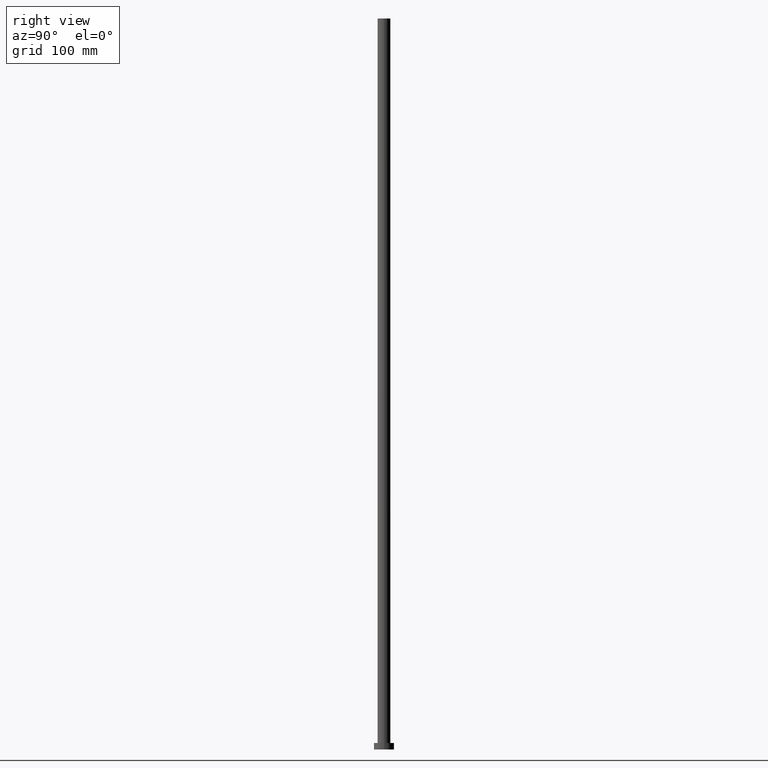
[diagram: clean part render]
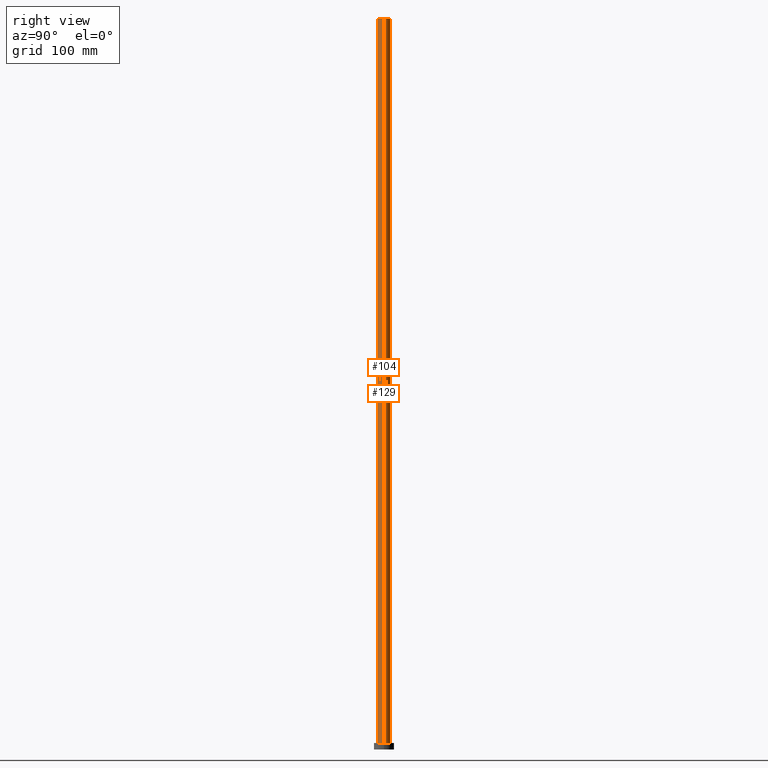
[diagram: same view with one multi-face feature highlighted, each face labeled with its STEP entity id]
A machine part, right view. The highlighted faces form ONE feature: a constant-radius fillet chain: 2 tangent blend faces with common blend radius 7 mm. The faces share edges in the B-rep.
Their STEP definitions:
[1] entity #129 (Cylinder):
#7 = DIRECTION ( 'NONE',  ( -1.000000000000000000, 0.000000000000000000, 0.000000000000000000 ) ) ;
#20 = CARTESIAN_POINT ( 'NONE',  ( 0.000000000000000000, 0.000000000000000000, 7.000000000000000000 ) ) ;
#24 = FACE_OUTER_BOUND ( 'NONE', #65, .T. ) ;
#26 = DIRECTION ( 'NONE',  ( 1.000000000000000000, 0.000000000000000000, 0.000000000000000000 ) ) ;
#39 = VECTOR ( 'NONE', #119, 1000.000000000000000 ) ;
#49 = CIRCLE ( 'NONE', #105, 7.000000000000000888 ) ;
#65 = EDGE_LOOP ( 'NONE', ( #182, #232, #204, #149 ) ) ;
#69 = CARTESIAN_POINT ( 'NONE',  ( -7.000000000000000888, 0.000000000000000000, 800.0000000000000000 ) ) ;
#77 = CARTESIAN_POINT ( 'NONE',  ( 0.000000000000000000, 0.000000000000000000, 800.0000000000000000 ) ) ;
#80 = LINE ( 'NONE', #226, #39 ) ;
#96 = CYLINDRICAL_SURFACE ( 'NONE', #191, 7.000000000000000888 ) ;
#98 = CARTESIAN_POINT ( 'NONE',  ( 7.000000000000000888, 8.572527594031474176E-16, 7.000000000000000000 ) ) ;
#105 = AXIS2_PLACEMENT_3D ( 'NONE', #173, #221, #196 ) ;
#108 = EDGE_CURVE ( 'NONE', #198, #118, #49, .T. ) ;
#117 = EDGE_CURVE ( 'NONE', #140, #150, #236, .T. ) ;
#118 = VERTEX_POINT ( 'NONE', #199 ) ;
#119 = DIRECTION ( 'NONE',  ( -0.000000000000000000, -0.000000000000000000, -1.000000000000000000 ) ) ;
#120 = EDGE_CURVE ( 'NONE', #198, #140, #80, .T. ) ;
#129 = ADVANCED_FACE ( 'NONE', ( #24 ), #96, .T. ) ;
#140 = VERTEX_POINT ( 'NONE', #98 ) ;
#143 = LINE ( 'NONE', #69, #193 ) ;
#149 = ORIENTED_EDGE ( 'NONE', *, *, #152, .F. ) ;
#150 = VERTEX_POINT ( 'NONE', #210 ) ;
#152 = EDGE_CURVE ( 'NONE', #118, #150, #143, .T. ) ;
#167 = CARTESIAN_POINT ( 'NONE',  ( 7.000000000000000888, 8.572527594031474176E-16, 800.0000000000000000 ) ) ;
#173 = CARTESIAN_POINT ( 'NONE',  ( 0.000000000000000000, 0.000000000000000000, 800.0000000000000000 ) ) ;
#176 = DIRECTION ( 'NONE',  ( -0.000000000000000000, -0.000000000000000000, -1.000000000000000000 ) ) ;
#182 = ORIENTED_EDGE ( 'NONE', *, *, #108, .F. ) ;
#191 = AXIS2_PLACEMENT_3D ( 'NONE', #77, #176, #7 ) ;
#193 = VECTOR ( 'NONE', #233, 1000.000000000000000 ) ;
#196 = DIRECTION ( 'NONE',  ( 1.000000000000000000, 0.000000000000000000, 0.000000000000000000 ) ) ;
#197 = AXIS2_PLACEMENT_3D ( 'NONE', #20, #203, #26 ) ;
#198 = VERTEX_POINT ( 'NONE', #167 ) ;
#199 = CARTESIAN_POINT ( 'NONE',  ( -7.000000000000000888, 0.000000000000000000, 800.0000000000000000 ) ) ;
#203 = DIRECTION ( 'NONE',  ( 0.000000000000000000, 0.000000000000000000, 1.000000000000000000 ) ) ;
#204 = ORIENTED_EDGE ( 'NONE', *, *, #117, .T. ) ;
#210 = CARTESIAN_POINT ( 'NONE',  ( -7.000000000000000888, 0.000000000000000000, 7.000000000000000000 ) ) ;
#221 = DIRECTION ( 'NONE',  ( 0.000000000000000000, 0.000000000000000000, 1.000000000000000000 ) ) ;
#226 = CARTESIAN_POINT ( 'NONE',  ( 7.000000000000000888, 8.572527594031474176E-16, 800.0000000000000000 ) ) ;
#232 = ORIENTED_EDGE ( 'NONE', *, *, #120, .T. ) ;
#233 = DIRECTION ( 'NONE',  ( -0.000000000000000000, -0.000000000000000000, -1.000000000000000000 ) ) ;
#236 = CIRCLE ( 'NONE', #197, 7.000000000000000888 ) ;
[2] entity #104 (Cylinder):
#1 = ORIENTED_EDGE ( 'NONE', *, *, #146, .T. ) ;
#21 = FACE_OUTER_BOUND ( 'NONE', #37, .T. ) ;
#23 = ORIENTED_EDGE ( 'NONE', *, *, #152, .T. ) ;
#37 = EDGE_LOOP ( 'NONE', ( #207, #164, #23, #1 ) ) ;
#39 = VECTOR ( 'NONE', #119, 1000.000000000000000 ) ;
#43 = AXIS2_PLACEMENT_3D ( 'NONE', #188, #82, #84 ) ;
#63 = DIRECTION ( 'NONE',  ( 1.000000000000000000, 0.000000000000000000, 0.000000000000000000 ) ) ;
#69 = CARTESIAN_POINT ( 'NONE',  ( -7.000000000000000888, 0.000000000000000000, 800.0000000000000000 ) ) ;
#80 = LINE ( 'NONE', #226, #39 ) ;
#82 = DIRECTION ( 'NONE',  ( 0.000000000000000000, 0.000000000000000000, 1.000000000000000000 ) ) ;
#84 = DIRECTION ( 'NONE',  ( 1.000000000000000000, 0.000000000000000000, 0.000000000000000000 ) ) ;
#91 = DIRECTION ( 'NONE',  ( -1.000000000000000000, 0.000000000000000000, 0.000000000000000000 ) ) ;
#94 = CYLINDRICAL_SURFACE ( 'NONE', #227, 7.000000000000000888 ) ;
#98 = CARTESIAN_POINT ( 'NONE',  ( 7.000000000000000888, 8.572527594031474176E-16, 7.000000000000000000 ) ) ;
#104 = ADVANCED_FACE ( 'NONE', ( #21 ), #94, .T. ) ;
#106 = CIRCLE ( 'NONE', #43, 7.000000000000000888 ) ;
#110 = AXIS2_PLACEMENT_3D ( 'NONE', #246, #229, #63 ) ;
#118 = VERTEX_POINT ( 'NONE', #199 ) ;
#119 = DIRECTION ( 'NONE',  ( -0.000000000000000000, -0.000000000000000000, -1.000000000000000000 ) ) ;
#120 = EDGE_CURVE ( 'NONE', #198, #140, #80, .T. ) ;
#140 = VERTEX_POINT ( 'NONE', #98 ) ;
#143 = LINE ( 'NONE', #69, #193 ) ;
#146 = EDGE_CURVE ( 'NONE', #150, #140, #255, .T. ) ;
#150 = VERTEX_POINT ( 'NONE', #210 ) ;
#152 = EDGE_CURVE ( 'NONE', #118, #150, #143, .T. ) ;
#164 = ORIENTED_EDGE ( 'NONE', *, *, #251, .F. ) ;
#167 = CARTESIAN_POINT ( 'NONE',  ( 7.000000000000000888, 8.572527594031474176E-16, 800.0000000000000000 ) ) ;
#188 = CARTESIAN_POINT ( 'NONE',  ( 0.000000000000000000, 0.000000000000000000, 800.0000000000000000 ) ) ;
#193 = VECTOR ( 'NONE', #233, 1000.000000000000000 ) ;
#194 = CARTESIAN_POINT ( 'NONE',  ( 0.000000000000000000, 0.000000000000000000, 800.0000000000000000 ) ) ;
#198 = VERTEX_POINT ( 'NONE', #167 ) ;
#199 = CARTESIAN_POINT ( 'NONE',  ( -7.000000000000000888, 0.000000000000000000, 800.0000000000000000 ) ) ;
#207 = ORIENTED_EDGE ( 'NONE', *, *, #120, .F. ) ;
#210 = CARTESIAN_POINT ( 'NONE',  ( -7.000000000000000888, 0.000000000000000000, 7.000000000000000000 ) ) ;
#218 = DIRECTION ( 'NONE',  ( -0.000000000000000000, -0.000000000000000000, -1.000000000000000000 ) ) ;
#226 = CARTESIAN_POINT ( 'NONE',  ( 7.000000000000000888, 8.572527594031474176E-16, 800.0000000000000000 ) ) ;
#227 = AXIS2_PLACEMENT_3D ( 'NONE', #194, #218, #91 ) ;
#229 = DIRECTION ( 'NONE',  ( 0.000000000000000000, 0.000000000000000000, 1.000000000000000000 ) ) ;
#233 = DIRECTION ( 'NONE',  ( -0.000000000000000000, -0.000000000000000000, -1.000000000000000000 ) ) ;
#246 = CARTESIAN_POINT ( 'NONE',  ( 0.000000000000000000, 0.000000000000000000, 7.000000000000000000 ) ) ;
#251 = EDGE_CURVE ( 'NONE', #118, #198, #106, .T. ) ;
#255 = CIRCLE ( 'NONE', #110, 7.000000000000000888 ) ;